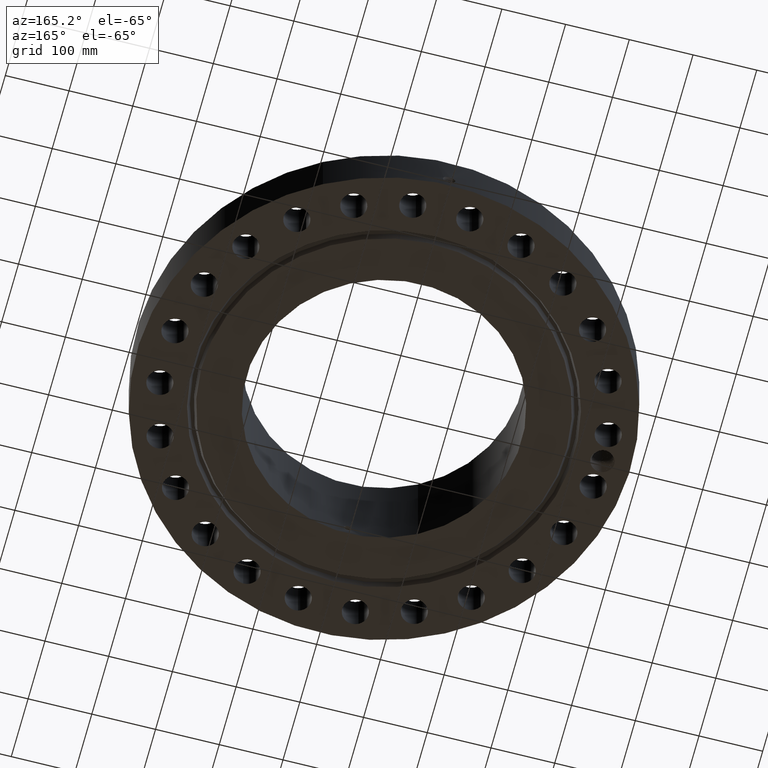
[diagram: clean part render]
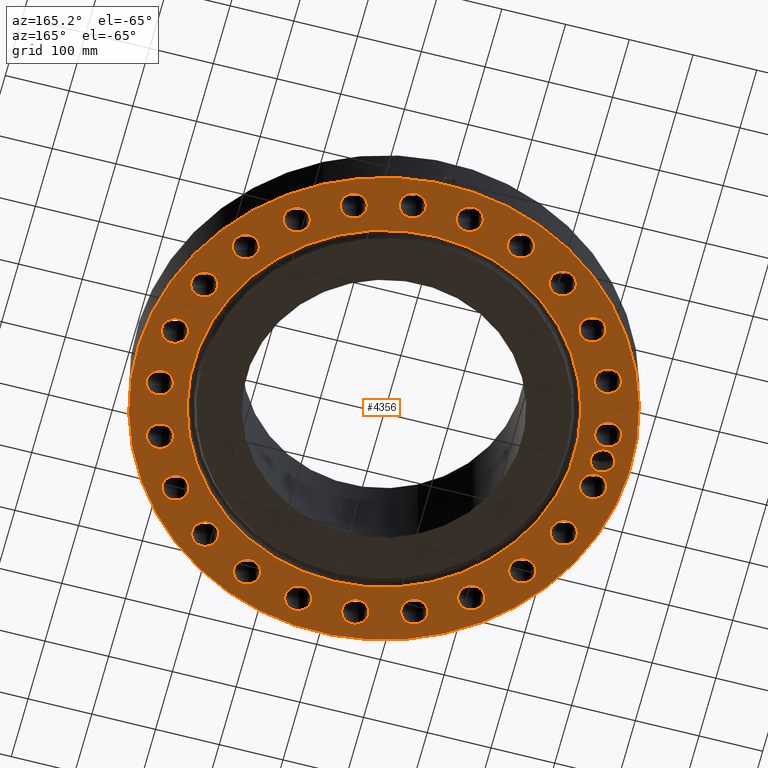
[diagram: same view with one face highlighted and labeled with its STEP entity id]
A machine part, auxiliary view. The second image highlights one B-rep face of the part: STEP entity #4356.
In plain terms, the highlighted planar face has unit normal (0, 0, -1).
Its self-contained STEP definition (entity closure, byte-faithful):
#598=AXIS2_PLACEMENT_3D('Plane Axis2P3D',#595,#596,#597) ;
#3275=AXIS2_PLACEMENT_3D('Circle Axis2P3D',#3273,#3274,$) ;
#3301=AXIS2_PLACEMENT_3D('Circle Axis2P3D',#3299,#3300,$) ;
#3850=AXIS2_PLACEMENT_3D('Circle Axis2P3D',#3848,#3849,$) ;
#3859=AXIS2_PLACEMENT_3D('Circle Axis2P3D',#3857,#3858,$) ;
#3868=AXIS2_PLACEMENT_3D('Circle Axis2P3D',#3866,#3867,$) ;
#3877=AXIS2_PLACEMENT_3D('Circle Axis2P3D',#3875,#3876,$) ;
#3884=AXIS2_PLACEMENT_3D('Circle Axis2P3D',#3882,#3883,$) ;
#3922=AXIS2_PLACEMENT_3D('Circle Axis2P3D',#3920,#3921,$) ;
#3931=AXIS2_PLACEMENT_3D('Circle Axis2P3D',#3929,#3930,$) ;
#3940=AXIS2_PLACEMENT_3D('Circle Axis2P3D',#3938,#3939,$) ;
#3949=AXIS2_PLACEMENT_3D('Circle Axis2P3D',#3947,#3948,$) ;
#3958=AXIS2_PLACEMENT_3D('Circle Axis2P3D',#3956,#3957,$) ;
#3967=AXIS2_PLACEMENT_3D('Circle Axis2P3D',#3965,#3966,$) ;
#3976=AXIS2_PLACEMENT_3D('Circle Axis2P3D',#3974,#3975,$) ;
#3985=AXIS2_PLACEMENT_3D('Circle Axis2P3D',#3983,#3984,$) ;
#3994=AXIS2_PLACEMENT_3D('Circle Axis2P3D',#3992,#3993,$) ;
#4003=AXIS2_PLACEMENT_3D('Circle Axis2P3D',#4001,#4002,$) ;
#4012=AXIS2_PLACEMENT_3D('Circle Axis2P3D',#4010,#4011,$) ;
#4021=AXIS2_PLACEMENT_3D('Circle Axis2P3D',#4019,#4020,$) ;
#4030=AXIS2_PLACEMENT_3D('Circle Axis2P3D',#4028,#4029,$) ;
#4039=AXIS2_PLACEMENT_3D('Circle Axis2P3D',#4037,#4038,$) ;
#4048=AXIS2_PLACEMENT_3D('Circle Axis2P3D',#4046,#4047,$) ;
#4057=AXIS2_PLACEMENT_3D('Circle Axis2P3D',#4055,#4056,$) ;
#4066=AXIS2_PLACEMENT_3D('Circle Axis2P3D',#4064,#4065,$) ;
#4075=AXIS2_PLACEMENT_3D('Circle Axis2P3D',#4073,#4074,$) ;
#4084=AXIS2_PLACEMENT_3D('Circle Axis2P3D',#4082,#4083,$) ;
#4093=AXIS2_PLACEMENT_3D('Circle Axis2P3D',#4091,#4092,$) ;
#4102=AXIS2_PLACEMENT_3D('Circle Axis2P3D',#4100,#4101,$) ;
#4111=AXIS2_PLACEMENT_3D('Circle Axis2P3D',#4109,#4110,$) ;
#4120=AXIS2_PLACEMENT_3D('Circle Axis2P3D',#4118,#4119,$) ;
#4129=AXIS2_PLACEMENT_3D('Circle Axis2P3D',#4127,#4128,$) ;
#4138=AXIS2_PLACEMENT_3D('Circle Axis2P3D',#4136,#4137,$) ;
#4147=AXIS2_PLACEMENT_3D('Circle Axis2P3D',#4145,#4146,$) ;
#4156=AXIS2_PLACEMENT_3D('Circle Axis2P3D',#4154,#4155,$) ;
#4165=AXIS2_PLACEMENT_3D('Circle Axis2P3D',#4163,#4164,$) ;
#4174=AXIS2_PLACEMENT_3D('Circle Axis2P3D',#4172,#4173,$) ;
#4183=AXIS2_PLACEMENT_3D('Circle Axis2P3D',#4181,#4182,$) ;
#4192=AXIS2_PLACEMENT_3D('Circle Axis2P3D',#4190,#4191,$) ;
#4201=AXIS2_PLACEMENT_3D('Circle Axis2P3D',#4199,#4200,$) ;
#4210=AXIS2_PLACEMENT_3D('Circle Axis2P3D',#4208,#4209,$) ;
#4219=AXIS2_PLACEMENT_3D('Circle Axis2P3D',#4217,#4218,$) ;
#4228=AXIS2_PLACEMENT_3D('Circle Axis2P3D',#4226,#4227,$) ;
#4237=AXIS2_PLACEMENT_3D('Circle Axis2P3D',#4235,#4236,$) ;
#4246=AXIS2_PLACEMENT_3D('Circle Axis2P3D',#4244,#4245,$) ;
#4255=AXIS2_PLACEMENT_3D('Circle Axis2P3D',#4253,#4254,$) ;
#4264=AXIS2_PLACEMENT_3D('Circle Axis2P3D',#4262,#4263,$) ;
#4273=AXIS2_PLACEMENT_3D('Circle Axis2P3D',#4271,#4272,$) ;
#4282=AXIS2_PLACEMENT_3D('Circle Axis2P3D',#4280,#4281,$) ;
#4291=AXIS2_PLACEMENT_3D('Circle Axis2P3D',#4289,#4290,$) ;
#4300=AXIS2_PLACEMENT_3D('Circle Axis2P3D',#4298,#4299,$) ;
#4309=AXIS2_PLACEMENT_3D('Circle Axis2P3D',#4307,#4308,$) ;
#4318=AXIS2_PLACEMENT_3D('Circle Axis2P3D',#4316,#4317,$) ;
#4327=AXIS2_PLACEMENT_3D('Circle Axis2P3D',#4325,#4326,$) ;
#4336=AXIS2_PLACEMENT_3D('Circle Axis2P3D',#4334,#4335,$) ;
#4345=AXIS2_PLACEMENT_3D('Circle Axis2P3D',#4343,#4344,$) ;
#595=CARTESIAN_POINT('Axis2P3D Location',(0.,8.50000000003,0.)) ;
#3273=CARTESIAN_POINT('Axis2P3D Location',(0.,0.,0.)) ;
#3277=CARTESIAN_POINT('Vertex',(-5.64068117447,10.325197632,0.)) ;
#3279=CARTESIAN_POINT('Vertex',(5.64068117447,-10.325197632,-1.95818864186E-015)) ;
#3299=CARTESIAN_POINT('Axis2P3D Location',(0.,0.,0.)) ;
#3848=CARTESIAN_POINT('Axis2P3D Location',(0.,0.,0.)) ;
#3852=CARTESIAN_POINT('Vertex',(-7.31123946374,-13.3831340689,1.67844740731E-015)) ;
#3854=CARTESIAN_POINT('Vertex',(7.31123946374,13.3831340689,1.67844740731E-015)) ;
#3857=CARTESIAN_POINT('Axis2P3D Location',(0.,0.,0.)) ;
#3866=CARTESIAN_POINT('Axis2P3D Location',(-13.5000000001,-4.47585975282E-015,0.)) ;
#3870=CARTESIAN_POINT('Vertex',(-14.1423026771,0.350891551706,0.)) ;
#3872=CARTESIAN_POINT('Vertex',(-13.9946919209,0.539404776984,0.)) ;
#3875=CARTESIAN_POINT('Axis2P3D Location',(-13.5000000001,-4.47585975282E-015,0.)) ;
#3879=CARTESIAN_POINT('Vertex',(-12.857697323,-0.350891551706,0.)) ;
#3882=CARTESIAN_POINT('Axis2P3D Location',(-13.5000000001,-4.47585975282E-015,0.)) ;
#3886=CARTESIAN_POINT('Vertex',(-13.0313287575,0.562160899069,0.)) ;
#3890=CARTESIAN_POINT('Control Point',(-13.5176305827,0.749805742301,0.)) ;
#3891=CARTESIAN_POINT('Control Point',(-13.4614873509,0.749237272821,0.)) ;
#3892=CARTESIAN_POINT('Control Point',(-13.4054600922,0.74341097386,0.)) ;
#3893=CARTESIAN_POINT('Control Point',(-13.3502031906,0.732335780362,0.)) ;
#3894=CARTESIAN_POINT('Control Point',(-13.2475757315,0.701470200822,0.)) ;
#3895=CARTESIAN_POINT('Control Point',(-13.1524552652,0.652965206507,0.)) ;
#3896=CARTESIAN_POINT('Control Point',(-13.1093767781,0.626103065866,0.)) ;
#3897=CARTESIAN_POINT('Control Point',(-13.0688797901,0.59572229823,0.)) ;
#3898=CARTESIAN_POINT('Control Point',(-13.0313287575,0.562160899069,0.)) ;
#3899=CARTESIAN_POINT('Vertex',(-13.5176305827,0.749805742301,-4.37095678986E-018)) ;
#3903=CARTESIAN_POINT('Control Point',(-13.5176305827,0.749805742301,0.)) ;
#3904=CARTESIAN_POINT('Control Point',(-13.5849434874,0.745961655341,0.)) ;
#3905=CARTESIAN_POINT('Control Point',(-13.6516740814,0.734555348833,0.)) ;
#3906=CARTESIAN_POINT('Control Point',(-13.7166930271,0.715676879872,0.)) ;
#3907=CARTESIAN_POINT('Control Point',(-13.8156574662,0.674316121072,0.)) ;
#3908=CARTESIAN_POINT('Control Point',(-13.9050065691,0.616387327466,0.)) ;
#3909=CARTESIAN_POINT('Control Point',(-13.9366738897,0.592695263898,0.)) ;
#3910=CARTESIAN_POINT('Control Point',(-13.9666245254,0.566978722404,0.)) ;
#3911=CARTESIAN_POINT('Control Point',(-13.9946919209,0.539404776984,0.)) ;
#3920=CARTESIAN_POINT('Axis2P3D Location',(13.3845056286,-1.76210359498,0.)) ;
#3924=CARTESIAN_POINT('Vertex',(14.0953475037,-2.15043828125,0.)) ;
#3926=CARTESIAN_POINT('Vertex',(12.6736637535,-1.37376890871,0.)) ;
#3929=CARTESIAN_POINT('Axis2P3D Location',(13.3845056286,-1.76210359498,0.)) ;
#3938=CARTESIAN_POINT('Axis2P3D Location',(12.472373689,-5.16622633695,0.)) ;
#3942=CARTESIAN_POINT('Vertex',(11.886261576,-4.6071444189,0.)) ;
#3944=CARTESIAN_POINT('Vertex',(13.0584858019,-5.725308255,0.)) ;
#3947=CARTESIAN_POINT('Axis2P3D Location',(12.472373689,-5.16622633695,0.)) ;
#3956=CARTESIAN_POINT('Axis2P3D Location',(10.710270094,-8.21827929165,0.)) ;
#3960=CARTESIAN_POINT('Vertex',(10.2888303152,-7.5265506506,0.)) ;
#3962=CARTESIAN_POINT('Vertex',(11.1317098728,-8.9100079327,0.)) ;
#3965=CARTESIAN_POINT('Axis2P3D Location',(10.710270094,-8.21827929165,0.)) ;
#3974=CARTESIAN_POINT('Axis2P3D Location',(8.21827929165,-10.710270094,0.)) ;
#3978=CARTESIAN_POINT('Vertex',(7.99023227142,-9.93303489368,0.)) ;
#3980=CARTESIAN_POINT('Vertex',(8.44632631188,-11.4875052943,0.)) ;
#3983=CARTESIAN_POINT('Axis2P3D Location',(8.21827929165,-10.710270094,0.)) ;
#3992=CARTESIAN_POINT('Axis2P3D Location',(5.16622633695,-12.472373689,0.)) ;
#3996=CARTESIAN_POINT('Vertex',(5.14711310286,-11.6625992239,0.)) ;
#3998=CARTESIAN_POINT('Vertex',(5.18533957104,-13.282148154,0.)) ;
#4001=CARTESIAN_POINT('Axis2P3D Location',(5.16622633695,-12.472373689,0.)) ;
#4010=CARTESIAN_POINT('Axis2P3D Location',(1.76210359498,-13.3845056286,0.)) ;
#4014=CARTESIAN_POINT('Vertex',(1.95322668235,-12.5973766903,0.)) ;
#4016=CARTESIAN_POINT('Vertex',(1.57098050761,-14.1716345669,0.)) ;
#4019=CARTESIAN_POINT('Axis2P3D Location',(1.76210359498,-13.3845056286,0.)) ;
#4028=CARTESIAN_POINT('Axis2P3D Location',(-1.76210359498,-13.3845056286,0.)) ;
#4032=CARTESIAN_POINT('Vertex',(-1.37376890871,-12.6736637535,0.)) ;
#4034=CARTESIAN_POINT('Vertex',(-2.15043828125,-14.0953475037,0.)) ;
#4037=CARTESIAN_POINT('Axis2P3D Location',(-1.76210359498,-13.3845056286,0.)) ;
#4046=CARTESIAN_POINT('Axis2P3D Location',(-5.16622633695,-12.472373689,0.)) ;
#4050=CARTESIAN_POINT('Vertex',(-4.6071444189,-11.886261576,0.)) ;
#4052=CARTESIAN_POINT('Vertex',(-5.725308255,-13.0584858019,-1.1189649382E-015)) ;
#4055=CARTESIAN_POINT('Axis2P3D Location',(-5.16622633695,-12.472373689,0.)) ;
#4064=CARTESIAN_POINT('Axis2P3D Location',(-8.21827929165,-10.710270094,0.)) ;
#4068=CARTESIAN_POINT('Vertex',(-7.5265506506,-10.2888303152,0.)) ;
#4070=CARTESIAN_POINT('Vertex',(-8.9100079327,-11.1317098728,-2.23792987641E-015)) ;
#4073=CARTESIAN_POINT('Axis2P3D Location',(-8.21827929165,-10.710270094,0.)) ;
#4082=CARTESIAN_POINT('Axis2P3D Location',(-10.710270094,-8.21827929165,0.)) ;
#4086=CARTESIAN_POINT('Vertex',(-9.93303489368,-7.99023227142,0.)) ;
#4088=CARTESIAN_POINT('Vertex',(-11.4875052943,-8.44632631188,0.)) ;
#4091=CARTESIAN_POINT('Axis2P3D Location',(-10.710270094,-8.21827929165,0.)) ;
#4100=CARTESIAN_POINT('Axis2P3D Location',(-12.472373689,-5.16622633695,0.)) ;
#4104=CARTESIAN_POINT('Vertex',(-11.6625992239,-5.14711310286,0.)) ;
#4106=CARTESIAN_POINT('Vertex',(-13.282148154,-5.18533957104,0.)) ;
#4109=CARTESIAN_POINT('Axis2P3D Location',(-12.472373689,-5.16622633695,0.)) ;
#4118=CARTESIAN_POINT('Axis2P3D Location',(-13.3845056286,-1.76210359498,0.)) ;
#4122=CARTESIAN_POINT('Vertex',(-12.5973766903,-1.95322668235,0.)) ;
#4124=CARTESIAN_POINT('Vertex',(-14.1716345669,-1.57098050761,0.)) ;
#4127=CARTESIAN_POINT('Axis2P3D Location',(-13.3845056286,-1.76210359498,0.)) ;
#4136=CARTESIAN_POINT('Axis2P3D Location',(-13.3845056286,1.76210359498,0.)) ;
#4140=CARTESIAN_POINT('Vertex',(-12.6736637535,1.37376890871,0.)) ;
#4142=CARTESIAN_POINT('Vertex',(-14.0953475037,2.15043828125,0.)) ;
#4145=CARTESIAN_POINT('Axis2P3D Location',(-13.3845056286,1.76210359498,0.)) ;
#4154=CARTESIAN_POINT('Axis2P3D Location',(-12.472373689,5.16622633695,0.)) ;
#4158=CARTESIAN_POINT('Vertex',(-11.886261576,4.6071444189,0.)) ;
#4160=CARTESIAN_POINT('Vertex',(-13.0584858019,5.725308255,0.)) ;
#4163=CARTESIAN_POINT('Axis2P3D Location',(-12.472373689,5.16622633695,0.)) ;
#4172=CARTESIAN_POINT('Axis2P3D Location',(-10.710270094,8.21827929165,0.)) ;
#4176=CARTESIAN_POINT('Vertex',(-10.2888303152,7.5265506506,0.)) ;
#4178=CARTESIAN_POINT('Vertex',(-11.1317098728,8.9100079327,0.)) ;
#4181=CARTESIAN_POINT('Axis2P3D Location',(-10.710270094,8.21827929165,0.)) ;
#4190=CARTESIAN_POINT('Axis2P3D Location',(-8.21827929165,10.710270094,0.)) ;
#4194=CARTESIAN_POINT('Vertex',(-7.99023227142,9.93303489368,0.)) ;
#4196=CARTESIAN_POINT('Vertex',(-8.44632631188,11.4875052943,0.)) ;
#4199=CARTESIAN_POINT('Axis2P3D Location',(-8.21827929165,10.710270094,0.)) ;
#4208=CARTESIAN_POINT('Axis2P3D Location',(-5.16622633695,12.472373689,0.)) ;
#4212=CARTESIAN_POINT('Vertex',(-5.14711310286,11.6625992239,0.)) ;
#4214=CARTESIAN_POINT('Vertex',(-5.18533957104,13.282148154,0.)) ;
#4217=CARTESIAN_POINT('Axis2P3D Location',(-5.16622633695,12.472373689,0.)) ;
#4226=CARTESIAN_POINT('Axis2P3D Location',(-1.76210359498,13.3845056286,0.)) ;
#4230=CARTESIAN_POINT('Vertex',(-1.95322668235,12.5973766903,0.)) ;
#4232=CARTESIAN_POINT('Vertex',(-1.57098050761,14.1716345669,0.)) ;
#4235=CARTESIAN_POINT('Axis2P3D Location',(-1.76210359498,13.3845056286,0.)) ;
#4244=CARTESIAN_POINT('Axis2P3D Location',(1.76210359498,13.3845056286,0.)) ;
#4248=CARTESIAN_POINT('Vertex',(1.37376890871,12.6736637535,0.)) ;
#4250=CARTESIAN_POINT('Vertex',(2.15043828125,14.0953475037,0.)) ;
#4253=CARTESIAN_POINT('Axis2P3D Location',(1.76210359498,13.3845056286,0.)) ;
#4262=CARTESIAN_POINT('Axis2P3D Location',(5.16622633695,12.472373689,0.)) ;
#4266=CARTESIAN_POINT('Vertex',(4.6071444189,11.886261576,0.)) ;
#4268=CARTESIAN_POINT('Vertex',(5.725308255,13.0584858019,0.)) ;
#4271=CARTESIAN_POINT('Axis2P3D Location',(5.16622633695,12.472373689,0.)) ;
#4280=CARTESIAN_POINT('Axis2P3D Location',(8.21827929165,10.710270094,0.)) ;
#4284=CARTESIAN_POINT('Vertex',(7.5265506506,10.2888303152,0.)) ;
#4286=CARTESIAN_POINT('Vertex',(8.9100079327,11.1317098728,0.)) ;
#4289=CARTESIAN_POINT('Axis2P3D Location',(8.21827929165,10.710270094,0.)) ;
#4298=CARTESIAN_POINT('Axis2P3D Location',(10.710270094,8.21827929165,0.)) ;
#4302=CARTESIAN_POINT('Vertex',(9.93303489368,7.99023227142,0.)) ;
#4304=CARTESIAN_POINT('Vertex',(11.4875052943,8.44632631188,0.)) ;
#4307=CARTESIAN_POINT('Axis2P3D Location',(10.710270094,8.21827929165,0.)) ;
#4316=CARTESIAN_POINT('Axis2P3D Location',(12.472373689,5.16622633695,0.)) ;
#4320=CARTESIAN_POINT('Vertex',(11.6625992239,5.14711310286,0.)) ;
#4322=CARTESIAN_POINT('Vertex',(13.282148154,5.18533957104,0.)) ;
#4325=CARTESIAN_POINT('Axis2P3D Location',(12.472373689,5.16622633695,0.)) ;
#4334=CARTESIAN_POINT('Axis2P3D Location',(13.3845056286,1.76210359498,0.)) ;
#4338=CARTESIAN_POINT('Vertex',(12.5973766903,1.95322668235,0.)) ;
#4340=CARTESIAN_POINT('Vertex',(14.1716345669,1.57098050761,0.)) ;
#4343=CARTESIAN_POINT('Axis2P3D Location',(13.3845056286,1.76210359498,0.)) ;
#596=DIRECTION('Axis2P3D Direction',(0.,0.,-0.0393700787402)) ;
#597=DIRECTION('Axis2P3D XDirection',(0.0393700787402,0.,0.)) ;
#3274=DIRECTION('Axis2P3D Direction',(0.,0.,-0.0393700787402)) ;
#3300=DIRECTION('Axis2P3D Direction',(0.,0.,-0.0393700787402)) ;
#3849=DIRECTION('Axis2P3D Direction',(0.,0.,-0.0393700787402)) ;
#3858=DIRECTION('Axis2P3D Direction',(0.,0.,-0.0393700787402)) ;
#3867=DIRECTION('Axis2P3D Direction',(0.,0.,-0.0393700787402)) ;
#3876=DIRECTION('Axis2P3D Direction',(0.,0.,-0.0393700787402)) ;
#3883=DIRECTION('Axis2P3D Direction',(0.,0.,-0.0393700787402)) ;
#3921=DIRECTION('Axis2P3D Direction',(0.,0.,-0.0393700787402)) ;
#3930=DIRECTION('Axis2P3D Direction',(0.,0.,-0.0393700787402)) ;
#3939=DIRECTION('Axis2P3D Direction',(0.,0.,-0.0393700787402)) ;
#3948=DIRECTION('Axis2P3D Direction',(0.,0.,-0.0393700787402)) ;
#3957=DIRECTION('Axis2P3D Direction',(0.,0.,-0.0393700787402)) ;
#3966=DIRECTION('Axis2P3D Direction',(0.,0.,-0.0393700787402)) ;
#3975=DIRECTION('Axis2P3D Direction',(0.,0.,-0.0393700787402)) ;
#3984=DIRECTION('Axis2P3D Direction',(0.,0.,-0.0393700787402)) ;
#3993=DIRECTION('Axis2P3D Direction',(0.,0.,-0.0393700787402)) ;
#4002=DIRECTION('Axis2P3D Direction',(0.,0.,-0.0393700787402)) ;
#4011=DIRECTION('Axis2P3D Direction',(0.,0.,-0.0393700787402)) ;
#4020=DIRECTION('Axis2P3D Direction',(0.,0.,-0.0393700787402)) ;
#4029=DIRECTION('Axis2P3D Direction',(0.,0.,-0.0393700787402)) ;
#4038=DIRECTION('Axis2P3D Direction',(0.,0.,-0.0393700787402)) ;
#4047=DIRECTION('Axis2P3D Direction',(0.,0.,-0.0393700787402)) ;
#4056=DIRECTION('Axis2P3D Direction',(0.,0.,-0.0393700787402)) ;
#4065=DIRECTION('Axis2P3D Direction',(0.,0.,-0.0393700787402)) ;
#4074=DIRECTION('Axis2P3D Direction',(0.,0.,-0.0393700787402)) ;
#4083=DIRECTION('Axis2P3D Direction',(0.,0.,-0.0393700787402)) ;
#4092=DIRECTION('Axis2P3D Direction',(0.,0.,-0.0393700787402)) ;
#4101=DIRECTION('Axis2P3D Direction',(0.,0.,-0.0393700787402)) ;
#4110=DIRECTION('Axis2P3D Direction',(0.,0.,-0.0393700787402)) ;
#4119=DIRECTION('Axis2P3D Direction',(0.,0.,-0.0393700787402)) ;
#4128=DIRECTION('Axis2P3D Direction',(0.,0.,-0.0393700787402)) ;
#4137=DIRECTION('Axis2P3D Direction',(0.,0.,-0.0393700787402)) ;
#4146=DIRECTION('Axis2P3D Direction',(0.,0.,-0.0393700787402)) ;
#4155=DIRECTION('Axis2P3D Direction',(0.,0.,-0.0393700787402)) ;
#4164=DIRECTION('Axis2P3D Direction',(0.,0.,-0.0393700787402)) ;
#4173=DIRECTION('Axis2P3D Direction',(0.,0.,-0.0393700787402)) ;
#4182=DIRECTION('Axis2P3D Direction',(0.,0.,-0.0393700787402)) ;
#4191=DIRECTION('Axis2P3D Direction',(0.,0.,-0.0393700787402)) ;
#4200=DIRECTION('Axis2P3D Direction',(0.,0.,-0.0393700787402)) ;
#4209=DIRECTION('Axis2P3D Direction',(0.,0.,-0.0393700787402)) ;
#4218=DIRECTION('Axis2P3D Direction',(0.,0.,-0.0393700787402)) ;
#4227=DIRECTION('Axis2P3D Direction',(0.,0.,-0.0393700787402)) ;
#4236=DIRECTION('Axis2P3D Direction',(0.,0.,-0.0393700787402)) ;
#4245=DIRECTION('Axis2P3D Direction',(0.,0.,-0.0393700787402)) ;
#4254=DIRECTION('Axis2P3D Direction',(0.,0.,-0.0393700787402)) ;
#4263=DIRECTION('Axis2P3D Direction',(0.,0.,-0.0393700787402)) ;
#4272=DIRECTION('Axis2P3D Direction',(0.,0.,-0.0393700787402)) ;
#4281=DIRECTION('Axis2P3D Direction',(0.,0.,-0.0393700787402)) ;
#4290=DIRECTION('Axis2P3D Direction',(0.,0.,-0.0393700787402)) ;
#4299=DIRECTION('Axis2P3D Direction',(0.,0.,-0.0393700787402)) ;
#4308=DIRECTION('Axis2P3D Direction',(0.,0.,-0.0393700787402)) ;
#4317=DIRECTION('Axis2P3D Direction',(0.,0.,-0.0393700787402)) ;
#4326=DIRECTION('Axis2P3D Direction',(0.,0.,-0.0393700787402)) ;
#4335=DIRECTION('Axis2P3D Direction',(0.,0.,-0.0393700787402)) ;
#4344=DIRECTION('Axis2P3D Direction',(0.,0.,-0.0393700787402)) ;
#3863=ORIENTED_EDGE('',*,*,#3856,.T.) ;
#3864=ORIENTED_EDGE('',*,*,#3861,.T.) ;
#3914=ORIENTED_EDGE('',*,*,#3874,.F.) ;
#3915=ORIENTED_EDGE('',*,*,#3881,.F.) ;
#3916=ORIENTED_EDGE('',*,*,#3888,.F.) ;
#3917=ORIENTED_EDGE('',*,*,#3901,.F.) ;
#3918=ORIENTED_EDGE('',*,*,#3912,.T.) ;
#3935=ORIENTED_EDGE('',*,*,#3928,.F.) ;
#3936=ORIENTED_EDGE('',*,*,#3933,.F.) ;
#3953=ORIENTED_EDGE('',*,*,#3946,.F.) ;
#3954=ORIENTED_EDGE('',*,*,#3951,.F.) ;
#3971=ORIENTED_EDGE('',*,*,#3964,.F.) ;
#3972=ORIENTED_EDGE('',*,*,#3969,.F.) ;
#3989=ORIENTED_EDGE('',*,*,#3982,.F.) ;
#3990=ORIENTED_EDGE('',*,*,#3987,.F.) ;
#4007=ORIENTED_EDGE('',*,*,#4000,.F.) ;
#4008=ORIENTED_EDGE('',*,*,#4005,.F.) ;
#4025=ORIENTED_EDGE('',*,*,#4018,.F.) ;
#4026=ORIENTED_EDGE('',*,*,#4023,.F.) ;
#4043=ORIENTED_EDGE('',*,*,#4036,.F.) ;
#4044=ORIENTED_EDGE('',*,*,#4041,.F.) ;
#4061=ORIENTED_EDGE('',*,*,#4054,.F.) ;
#4062=ORIENTED_EDGE('',*,*,#4059,.F.) ;
#4079=ORIENTED_EDGE('',*,*,#4072,.F.) ;
#4080=ORIENTED_EDGE('',*,*,#4077,.F.) ;
#4097=ORIENTED_EDGE('',*,*,#4090,.F.) ;
#4098=ORIENTED_EDGE('',*,*,#4095,.F.) ;
#4115=ORIENTED_EDGE('',*,*,#4108,.F.) ;
#4116=ORIENTED_EDGE('',*,*,#4113,.F.) ;
#4133=ORIENTED_EDGE('',*,*,#4126,.F.) ;
#4134=ORIENTED_EDGE('',*,*,#4131,.F.) ;
#4151=ORIENTED_EDGE('',*,*,#4144,.F.) ;
#4152=ORIENTED_EDGE('',*,*,#4149,.F.) ;
#4169=ORIENTED_EDGE('',*,*,#4162,.F.) ;
#4170=ORIENTED_EDGE('',*,*,#4167,.F.) ;
#4187=ORIENTED_EDGE('',*,*,#4180,.F.) ;
#4188=ORIENTED_EDGE('',*,*,#4185,.F.) ;
#4205=ORIENTED_EDGE('',*,*,#4198,.F.) ;
#4206=ORIENTED_EDGE('',*,*,#4203,.F.) ;
#4223=ORIENTED_EDGE('',*,*,#4216,.F.) ;
#4224=ORIENTED_EDGE('',*,*,#4221,.F.) ;
#4241=ORIENTED_EDGE('',*,*,#4234,.F.) ;
#4242=ORIENTED_EDGE('',*,*,#4239,.F.) ;
#4259=ORIENTED_EDGE('',*,*,#4252,.F.) ;
#4260=ORIENTED_EDGE('',*,*,#4257,.F.) ;
#4277=ORIENTED_EDGE('',*,*,#4270,.F.) ;
#4278=ORIENTED_EDGE('',*,*,#4275,.F.) ;
#4295=ORIENTED_EDGE('',*,*,#4288,.F.) ;
#4296=ORIENTED_EDGE('',*,*,#4293,.F.) ;
#4313=ORIENTED_EDGE('',*,*,#4306,.F.) ;
#4314=ORIENTED_EDGE('',*,*,#4311,.F.) ;
#4331=ORIENTED_EDGE('',*,*,#4324,.F.) ;
#4332=ORIENTED_EDGE('',*,*,#4329,.F.) ;
#4349=ORIENTED_EDGE('',*,*,#4342,.F.) ;
#4350=ORIENTED_EDGE('',*,*,#4347,.F.) ;
#4353=ORIENTED_EDGE('',*,*,#3303,.F.) ;
#4354=ORIENTED_EDGE('',*,*,#3281,.F.) ;
#3919=FACE_BOUND('',#3913,.T.) ;
#3937=FACE_BOUND('',#3934,.T.) ;
#3955=FACE_BOUND('',#3952,.T.) ;
#3973=FACE_BOUND('',#3970,.T.) ;
#3991=FACE_BOUND('',#3988,.T.) ;
#4009=FACE_BOUND('',#4006,.T.) ;
#4027=FACE_BOUND('',#4024,.T.) ;
#4045=FACE_BOUND('',#4042,.T.) ;
#4063=FACE_BOUND('',#4060,.T.) ;
#4081=FACE_BOUND('',#4078,.T.) ;
#4099=FACE_BOUND('',#4096,.T.) ;
#4117=FACE_BOUND('',#4114,.T.) ;
#4135=FACE_BOUND('',#4132,.T.) ;
#4153=FACE_BOUND('',#4150,.T.) ;
#4171=FACE_BOUND('',#4168,.T.) ;
#4189=FACE_BOUND('',#4186,.T.) ;
#4207=FACE_BOUND('',#4204,.T.) ;
#4225=FACE_BOUND('',#4222,.T.) ;
#4243=FACE_BOUND('',#4240,.T.) ;
#4261=FACE_BOUND('',#4258,.T.) ;
#4279=FACE_BOUND('',#4276,.T.) ;
#4297=FACE_BOUND('',#4294,.T.) ;
#4315=FACE_BOUND('',#4312,.T.) ;
#4333=FACE_BOUND('',#4330,.T.) ;
#4351=FACE_BOUND('',#4348,.T.) ;
#4355=FACE_BOUND('',#4352,.T.) ;
#4356=ADVANCED_FACE('PartBody',(#3865,#3919,#3937,#3955,#3973,#3991,#4009,#4027,#4045,#4063,#4081,#4099,#4117,#4135,#4153,#4171,#4189,#4207,#4225,#4243,#4261,#4279,#4297,#4315,#4333,#4351,#4355),#599,.T.) ;
#3889=B_SPLINE_CURVE_WITH_KNOTS('',5,(#3890,#3891,#3892,#3893,#3894,#3895,#3896,#3897,#3898),.UNSPECIFIED.,.F.,.U.,(6,3,6),(0.,9.84034083963,18.7636600129),.UNSPECIFIED.) ;
#3902=B_SPLINE_CURVE_WITH_KNOTS('',5,(#3903,#3904,#3905,#3906,#3907,#3908,#3909,#3910,#3911),.UNSPECIFIED.,.F.,.U.,(6,3,6),(0.,11.8167081256,18.8024030854),.UNSPECIFIED.) ;
#3276=CIRCLE('generated circle',#3275,11.7655) ;
#3302=CIRCLE('generated circle',#3301,11.7655) ;
#3851=CIRCLE('generated circle',#3850,15.2500000001) ;
#3860=CIRCLE('generated circle',#3859,15.2500000001) ;
#3869=CIRCLE('generated circle',#3868,0.731900000003) ;
#3878=CIRCLE('generated circle',#3877,0.731900000003) ;
#3885=CIRCLE('generated circle',#3884,0.731900000003) ;
#3923=CIRCLE('generated circle',#3922,0.810000000003) ;
#3932=CIRCLE('generated circle',#3931,0.810000000003) ;
#3941=CIRCLE('generated circle',#3940,0.810000000003) ;
#3950=CIRCLE('generated circle',#3949,0.810000000003) ;
#3959=CIRCLE('generated circle',#3958,0.810000000003) ;
#3968=CIRCLE('generated circle',#3967,0.810000000003) ;
#3977=CIRCLE('generated circle',#3976,0.810000000003) ;
#3986=CIRCLE('generated circle',#3985,0.810000000003) ;
#3995=CIRCLE('generated circle',#3994,0.810000000003) ;
#4004=CIRCLE('generated circle',#4003,0.810000000003) ;
#4013=CIRCLE('generated circle',#4012,0.810000000003) ;
#4022=CIRCLE('generated circle',#4021,0.810000000003) ;
#4031=CIRCLE('generated circle',#4030,0.810000000003) ;
#4040=CIRCLE('generated circle',#4039,0.810000000003) ;
#4049=CIRCLE('generated circle',#4048,0.810000000003) ;
#4058=CIRCLE('generated circle',#4057,0.810000000003) ;
#4067=CIRCLE('generated circle',#4066,0.810000000003) ;
#4076=CIRCLE('generated circle',#4075,0.810000000003) ;
#4085=CIRCLE('generated circle',#4084,0.810000000003) ;
#4094=CIRCLE('generated circle',#4093,0.810000000003) ;
#4103=CIRCLE('generated circle',#4102,0.810000000003) ;
#4112=CIRCLE('generated circle',#4111,0.810000000003) ;
#4121=CIRCLE('generated circle',#4120,0.810000000003) ;
#4130=CIRCLE('generated circle',#4129,0.810000000003) ;
#4139=CIRCLE('generated circle',#4138,0.810000000003) ;
#4148=CIRCLE('generated circle',#4147,0.810000000003) ;
#4157=CIRCLE('generated circle',#4156,0.810000000003) ;
#4166=CIRCLE('generated circle',#4165,0.810000000003) ;
#4175=CIRCLE('generated circle',#4174,0.810000000003) ;
#4184=CIRCLE('generated circle',#4183,0.810000000003) ;
#4193=CIRCLE('generated circle',#4192,0.810000000003) ;
#4202=CIRCLE('generated circle',#4201,0.810000000003) ;
#4211=CIRCLE('generated circle',#4210,0.810000000003) ;
#4220=CIRCLE('generated circle',#4219,0.810000000003) ;
#4229=CIRCLE('generated circle',#4228,0.810000000003) ;
#4238=CIRCLE('generated circle',#4237,0.810000000003) ;
#4247=CIRCLE('generated circle',#4246,0.810000000003) ;
#4256=CIRCLE('generated circle',#4255,0.810000000003) ;
#4265=CIRCLE('generated circle',#4264,0.810000000003) ;
#4274=CIRCLE('generated circle',#4273,0.810000000003) ;
#4283=CIRCLE('generated circle',#4282,0.810000000003) ;
#4292=CIRCLE('generated circle',#4291,0.810000000003) ;
#4301=CIRCLE('generated circle',#4300,0.810000000003) ;
#4310=CIRCLE('generated circle',#4309,0.810000000003) ;
#4319=CIRCLE('generated circle',#4318,0.810000000003) ;
#4328=CIRCLE('generated circle',#4327,0.810000000003) ;
#4337=CIRCLE('generated circle',#4336,0.810000000003) ;
#4346=CIRCLE('generated circle',#4345,0.810000000003) ;
#3281=EDGE_CURVE('',#3278,#3280,#3276,.T.) ;
#3303=EDGE_CURVE('',#3280,#3278,#3302,.T.) ;
#3856=EDGE_CURVE('',#3853,#3855,#3851,.T.) ;
#3861=EDGE_CURVE('',#3855,#3853,#3860,.T.) ;
#3874=EDGE_CURVE('',#3871,#3873,#3869,.T.) ;
#3881=EDGE_CURVE('',#3880,#3871,#3878,.T.) ;
#3888=EDGE_CURVE('',#3887,#3880,#3885,.T.) ;
#3901=EDGE_CURVE('',#3900,#3887,#3889,.T.) ;
#3912=EDGE_CURVE('',#3900,#3873,#3902,.T.) ;
#3928=EDGE_CURVE('',#3925,#3927,#3923,.T.) ;
#3933=EDGE_CURVE('',#3927,#3925,#3932,.T.) ;
#3946=EDGE_CURVE('',#3943,#3945,#3941,.T.) ;
#3951=EDGE_CURVE('',#3945,#3943,#3950,.T.) ;
#3964=EDGE_CURVE('',#3961,#3963,#3959,.T.) ;
#3969=EDGE_CURVE('',#3963,#3961,#3968,.T.) ;
#3982=EDGE_CURVE('',#3979,#3981,#3977,.T.) ;
#3987=EDGE_CURVE('',#3981,#3979,#3986,.T.) ;
#4000=EDGE_CURVE('',#3997,#3999,#3995,.T.) ;
#4005=EDGE_CURVE('',#3999,#3997,#4004,.T.) ;
#4018=EDGE_CURVE('',#4015,#4017,#4013,.T.) ;
#4023=EDGE_CURVE('',#4017,#4015,#4022,.T.) ;
#4036=EDGE_CURVE('',#4033,#4035,#4031,.T.) ;
#4041=EDGE_CURVE('',#4035,#4033,#4040,.T.) ;
#4054=EDGE_CURVE('',#4051,#4053,#4049,.T.) ;
#4059=EDGE_CURVE('',#4053,#4051,#4058,.T.) ;
#4072=EDGE_CURVE('',#4069,#4071,#4067,.T.) ;
#4077=EDGE_CURVE('',#4071,#4069,#4076,.T.) ;
#4090=EDGE_CURVE('',#4087,#4089,#4085,.T.) ;
#4095=EDGE_CURVE('',#4089,#4087,#4094,.T.) ;
#4108=EDGE_CURVE('',#4105,#4107,#4103,.T.) ;
#4113=EDGE_CURVE('',#4107,#4105,#4112,.T.) ;
#4126=EDGE_CURVE('',#4123,#4125,#4121,.T.) ;
#4131=EDGE_CURVE('',#4125,#4123,#4130,.T.) ;
#4144=EDGE_CURVE('',#4141,#4143,#4139,.T.) ;
#4149=EDGE_CURVE('',#4143,#4141,#4148,.T.) ;
#4162=EDGE_CURVE('',#4159,#4161,#4157,.T.) ;
#4167=EDGE_CURVE('',#4161,#4159,#4166,.T.) ;
#4180=EDGE_CURVE('',#4177,#4179,#4175,.T.) ;
#4185=EDGE_CURVE('',#4179,#4177,#4184,.T.) ;
#4198=EDGE_CURVE('',#4195,#4197,#4193,.T.) ;
#4203=EDGE_CURVE('',#4197,#4195,#4202,.T.) ;
#4216=EDGE_CURVE('',#4213,#4215,#4211,.T.) ;
#4221=EDGE_CURVE('',#4215,#4213,#4220,.T.) ;
#4234=EDGE_CURVE('',#4231,#4233,#4229,.T.) ;
#4239=EDGE_CURVE('',#4233,#4231,#4238,.T.) ;
#4252=EDGE_CURVE('',#4249,#4251,#4247,.T.) ;
#4257=EDGE_CURVE('',#4251,#4249,#4256,.T.) ;
#4270=EDGE_CURVE('',#4267,#4269,#4265,.T.) ;
#4275=EDGE_CURVE('',#4269,#4267,#4274,.T.) ;
#4288=EDGE_CURVE('',#4285,#4287,#4283,.T.) ;
#4293=EDGE_CURVE('',#4287,#4285,#4292,.T.) ;
#4306=EDGE_CURVE('',#4303,#4305,#4301,.T.) ;
#4311=EDGE_CURVE('',#4305,#4303,#4310,.T.) ;
#4324=EDGE_CURVE('',#4321,#4323,#4319,.T.) ;
#4329=EDGE_CURVE('',#4323,#4321,#4328,.T.) ;
#4342=EDGE_CURVE('',#4339,#4341,#4337,.T.) ;
#4347=EDGE_CURVE('',#4341,#4339,#4346,.T.) ;
#3862=EDGE_LOOP('',(#3863,#3864)) ;
#3913=EDGE_LOOP('',(#3914,#3915,#3916,#3917,#3918)) ;
#3934=EDGE_LOOP('',(#3935,#3936)) ;
#3952=EDGE_LOOP('',(#3953,#3954)) ;
#3970=EDGE_LOOP('',(#3971,#3972)) ;
#3988=EDGE_LOOP('',(#3989,#3990)) ;
#4006=EDGE_LOOP('',(#4007,#4008)) ;
#4024=EDGE_LOOP('',(#4025,#4026)) ;
#4042=EDGE_LOOP('',(#4043,#4044)) ;
#4060=EDGE_LOOP('',(#4061,#4062)) ;
#4078=EDGE_LOOP('',(#4079,#4080)) ;
#4096=EDGE_LOOP('',(#4097,#4098)) ;
#4114=EDGE_LOOP('',(#4115,#4116)) ;
#4132=EDGE_LOOP('',(#4133,#4134)) ;
#4150=EDGE_LOOP('',(#4151,#4152)) ;
#4168=EDGE_LOOP('',(#4169,#4170)) ;
#4186=EDGE_LOOP('',(#4187,#4188)) ;
#4204=EDGE_LOOP('',(#4205,#4206)) ;
#4222=EDGE_LOOP('',(#4223,#4224)) ;
#4240=EDGE_LOOP('',(#4241,#4242)) ;
#4258=EDGE_LOOP('',(#4259,#4260)) ;
#4276=EDGE_LOOP('',(#4277,#4278)) ;
#4294=EDGE_LOOP('',(#4295,#4296)) ;
#4312=EDGE_LOOP('',(#4313,#4314)) ;
#4330=EDGE_LOOP('',(#4331,#4332)) ;
#4348=EDGE_LOOP('',(#4349,#4350)) ;
#4352=EDGE_LOOP('',(#4353,#4354)) ;
#3865=FACE_OUTER_BOUND('',#3862,.T.) ;
#599=PLANE('',#598) ;
#3278=VERTEX_POINT('',#3277) ;
#3280=VERTEX_POINT('',#3279) ;
#3853=VERTEX_POINT('',#3852) ;
#3855=VERTEX_POINT('',#3854) ;
#3871=VERTEX_POINT('',#3870) ;
#3873=VERTEX_POINT('',#3872) ;
#3880=VERTEX_POINT('',#3879) ;
#3887=VERTEX_POINT('',#3886) ;
#3900=VERTEX_POINT('',#3899) ;
#3925=VERTEX_POINT('',#3924) ;
#3927=VERTEX_POINT('',#3926) ;
#3943=VERTEX_POINT('',#3942) ;
#3945=VERTEX_POINT('',#3944) ;
#3961=VERTEX_POINT('',#3960) ;
#3963=VERTEX_POINT('',#3962) ;
#3979=VERTEX_POINT('',#3978) ;
#3981=VERTEX_POINT('',#3980) ;
#3997=VERTEX_POINT('',#3996) ;
#3999=VERTEX_POINT('',#3998) ;
#4015=VERTEX_POINT('',#4014) ;
#4017=VERTEX_POINT('',#4016) ;
#4033=VERTEX_POINT('',#4032) ;
#4035=VERTEX_POINT('',#4034) ;
#4051=VERTEX_POINT('',#4050) ;
#4053=VERTEX_POINT('',#4052) ;
#4069=VERTEX_POINT('',#4068) ;
#4071=VERTEX_POINT('',#4070) ;
#4087=VERTEX_POINT('',#4086) ;
#4089=VERTEX_POINT('',#4088) ;
#4105=VERTEX_POINT('',#4104) ;
#4107=VERTEX_POINT('',#4106) ;
#4123=VERTEX_POINT('',#4122) ;
#4125=VERTEX_POINT('',#4124) ;
#4141=VERTEX_POINT('',#4140) ;
#4143=VERTEX_POINT('',#4142) ;
#4159=VERTEX_POINT('',#4158) ;
#4161=VERTEX_POINT('',#4160) ;
#4177=VERTEX_POINT('',#4176) ;
#4179=VERTEX_POINT('',#4178) ;
#4195=VERTEX_POINT('',#4194) ;
#4197=VERTEX_POINT('',#4196) ;
#4213=VERTEX_POINT('',#4212) ;
#4215=VERTEX_POINT('',#4214) ;
#4231=VERTEX_POINT('',#4230) ;
#4233=VERTEX_POINT('',#4232) ;
#4249=VERTEX_POINT('',#4248) ;
#4251=VERTEX_POINT('',#4250) ;
#4267=VERTEX_POINT('',#4266) ;
#4269=VERTEX_POINT('',#4268) ;
#4285=VERTEX_POINT('',#4284) ;
#4287=VERTEX_POINT('',#4286) ;
#4303=VERTEX_POINT('',#4302) ;
#4305=VERTEX_POINT('',#4304) ;
#4321=VERTEX_POINT('',#4320) ;
#4323=VERTEX_POINT('',#4322) ;
#4339=VERTEX_POINT('',#4338) ;
#4341=VERTEX_POINT('',#4340) ;